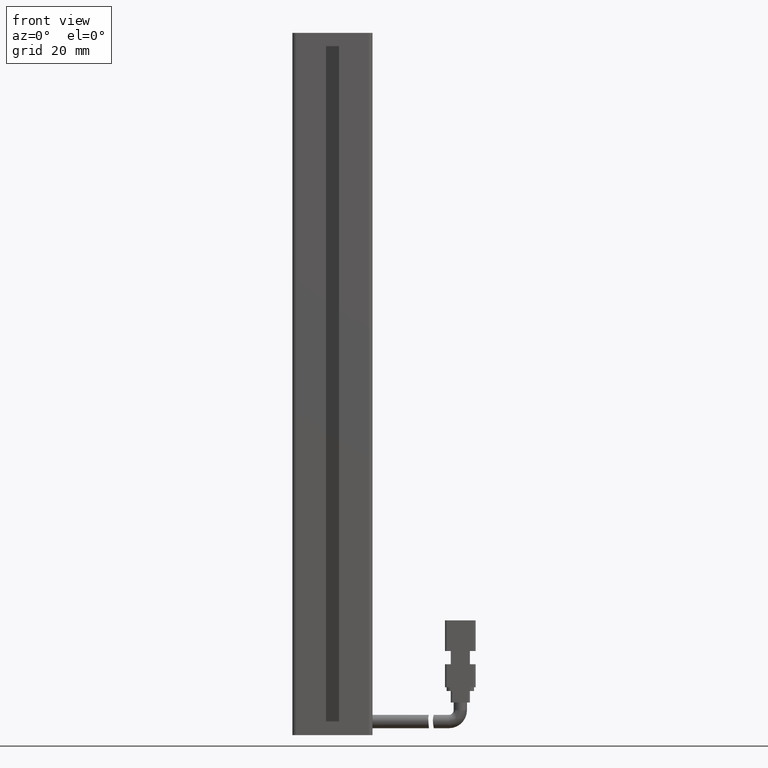
[diagram: clean part render]
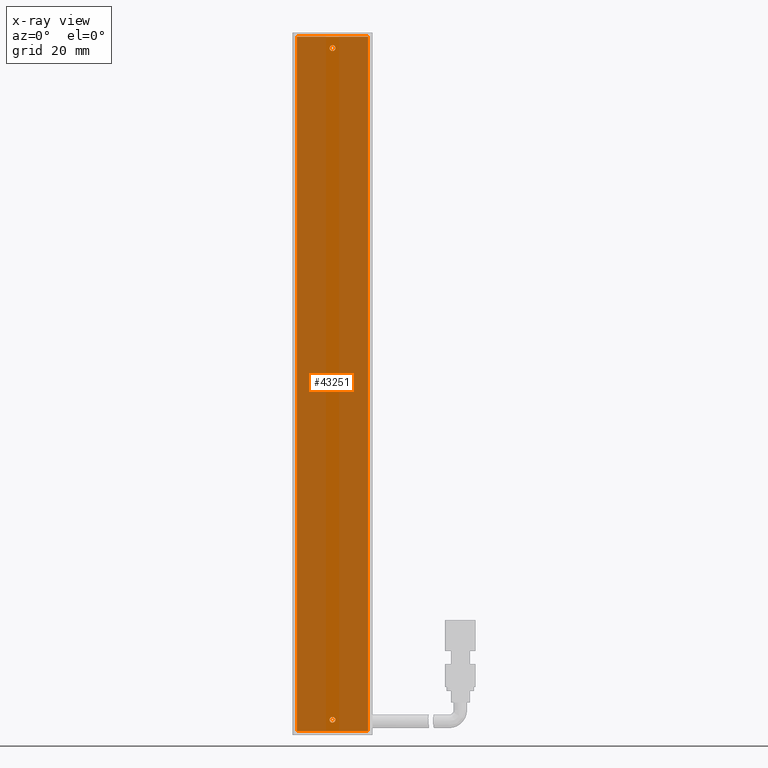
[diagram: x-ray — body ghosted, one internal face saturated and labeled with its STEP entity id]
A machine part, front view, then the same camera in x-ray: the body is ghosted and one INTERNAL B-rep face — a face not visible from any outside direction — is saturated and labeled: STEP entity #43251.
In plain terms, the highlighted planar face has unit normal (-0, 1, 0).
Its self-contained STEP definition (entity closure, byte-faithful):
#704 = VERTEX_POINT ( 'NONE', #17069 ) ;
#1694 = VERTEX_POINT ( 'NONE', #35251 ) ;
#1954 = FACE_BOUND ( 'NONE', #44850, .T. ) ;
#2106 = EDGE_CURVE ( 'NONE', #38720, #4410, #44615, .T. ) ;
#2410 = EDGE_LOOP ( 'NONE', ( #26438, #21220 ) ) ;
#2729 = DIRECTION ( 'NONE',  ( 1.000000000000000000, 0.0000000000000000000, -1.548860246407863500E-017 ) ) ;
#3861 = CIRCLE ( 'NONE', #25537, 0.7500000000000006700 ) ;
#4410 = VERTEX_POINT ( 'NONE', #39815 ) ;
#4697 = CARTESIAN_POINT ( 'NONE',  ( 40.92537974683540400, 32.09073232304837100, -203.0000000000000000 ) ) ;
#4927 = CIRCLE ( 'NONE', #15396, 0.7500000000000006700 ) ;
#5407 = DIRECTION ( 'NONE',  ( -1.548860246407863500E-017, -0.0000000000000000000, -1.000000000000000000 ) ) ;
#5948 = VERTEX_POINT ( 'NONE', #35220 ) ;
#7782 = VERTEX_POINT ( 'NONE', #11247 ) ;
#8095 = DIRECTION ( 'NONE',  ( -0.0000000000000000000, -1.000000000000000000, -0.0000000000000000000 ) ) ;
#8599 = CIRCLE ( 'NONE', #32925, 0.7500000000000006700 ) ;
#8708 = EDGE_CURVE ( 'NONE', #1694, #704, #13529, .T. ) ;
#9887 = LINE ( 'NONE', #39564, #16324 ) ;
#10181 = DIRECTION ( 'NONE',  ( -0.0000000000000000000, -1.000000000000000000, -0.0000000000000000000 ) ) ;
#11211 = EDGE_CURVE ( 'NONE', #7782, #38720, #40896, .T. ) ;
#11247 = CARTESIAN_POINT ( 'NONE',  ( 31.57537974683539900, 32.09073232304837100, -206.0000000000000300 ) ) ;
#12079 = DIRECTION ( 'NONE',  ( -0.0000000000000000000, -1.000000000000000000, -0.0000000000000000000 ) ) ;
#13529 = CIRCLE ( 'NONE', #31983, 0.7500000000000006700 ) ;
#14117 = ORIENTED_EDGE ( 'NONE', *, *, #47263, .F. ) ;
#15049 = CARTESIAN_POINT ( 'NONE',  ( 50.27537974683540500, 32.09073232304837100, -206.0000000000000300 ) ) ;
#15396 = AXIS2_PLACEMENT_3D ( 'NONE', #21740, #18285, #25032 ) ;
#15536 = CARTESIAN_POINT ( 'NONE',  ( 31.57537974683542000, 32.09073232304837100, -24.00000000000002100 ) ) ;
#16288 = EDGE_CURVE ( 'NONE', #5948, #46253, #4927, .T. ) ;
#16324 = VECTOR ( 'NONE', #5407, 1000.000000000000000 ) ;
#17069 = CARTESIAN_POINT ( 'NONE',  ( 40.92537974683540400, 32.09073232304837100, -202.2500000000000000 ) ) ;
#17630 = CARTESIAN_POINT ( 'NONE',  ( 50.27537974683542600, 32.09073232304837100, -24.00000000000002100 ) ) ;
#18285 = DIRECTION ( 'NONE',  ( -0.0000000000000000000, -1.000000000000000000, -0.0000000000000000000 ) ) ;
#19044 = EDGE_LOOP ( 'NONE', ( #35835, #14117, #42991, #41344 ) ) ;
#19142 = DIRECTION ( 'NONE',  ( 0.0000000000000000000, 0.0000000000000000000, 1.000000000000000000 ) ) ;
#21220 = ORIENTED_EDGE ( 'NONE', *, *, #8708, .F. ) ;
#21740 = CARTESIAN_POINT ( 'NONE',  ( 40.92537974683541800, 32.09073232304837100, -27.00000000000002500 ) ) ;
#22639 = CARTESIAN_POINT ( 'NONE',  ( 50.27537974683542600, 32.09073232304837100, -24.00000000000002100 ) ) ;
#23086 = FACE_BOUND ( 'NONE', #2410, .T. ) ;
#23224 = CARTESIAN_POINT ( 'NONE',  ( 40.92537974683541800, 32.09073232304837100, -27.00000000000002500 ) ) ;
#24543 = VECTOR ( 'NONE', #47088, 1000.000000000000000 ) ;
#25032 = DIRECTION ( 'NONE',  ( 0.0000000000000000000, 0.0000000000000000000, 1.000000000000000000 ) ) ;
#25537 = AXIS2_PLACEMENT_3D ( 'NONE', #23224, #8095, #45445 ) ;
#26075 = DIRECTION ( 'NONE',  ( -0.0000000000000000000, 1.000000000000000000, 0.0000000000000000000 ) ) ;
#26438 = ORIENTED_EDGE ( 'NONE', *, *, #32331, .F. ) ;
#28221 = VECTOR ( 'NONE', #2729, 1000.000000000000000 ) ;
#29337 = ORIENTED_EDGE ( 'NONE', *, *, #16288, .F. ) ;
#31700 = LINE ( 'NONE', #34088, #33441 ) ;
#31885 = CARTESIAN_POINT ( 'NONE',  ( 31.57537974683540600, 32.09073232304837100, -24.00000000000002100 ) ) ;
#31897 = AXIS2_PLACEMENT_3D ( 'NONE', #22639, #26075, #37299 ) ;
#31983 = AXIS2_PLACEMENT_3D ( 'NONE', #43911, #10181, #47483 ) ;
#32331 = EDGE_CURVE ( 'NONE', #704, #1694, #8599, .T. ) ;
#32925 = AXIS2_PLACEMENT_3D ( 'NONE', #4697, #12079, #19142 ) ;
#33441 = VECTOR ( 'NONE', #38633, 1000.000000000000000 ) ;
#34088 = CARTESIAN_POINT ( 'NONE',  ( 50.27537974683541900, 32.09073232304837100, -206.0000000000000300 ) ) ;
#35220 = CARTESIAN_POINT ( 'NONE',  ( 40.92537974683541800, 32.09073232304837100, -26.25000000000002500 ) ) ;
#35251 = CARTESIAN_POINT ( 'NONE',  ( 40.92537974683540400, 32.09073232304837100, -203.7500000000000300 ) ) ;
#35835 = ORIENTED_EDGE ( 'NONE', *, *, #11211, .F. ) ;
#37141 = PLANE ( 'NONE',  #31897 ) ;
#37147 = EDGE_CURVE ( 'NONE', #46253, #5948, #3861, .T. ) ;
#37299 = DIRECTION ( 'NONE',  ( 1.548860246407863500E-017, 0.0000000000000000000, 1.000000000000000000 ) ) ;
#37526 = ORIENTED_EDGE ( 'NONE', *, *, #37147, .F. ) ;
#38633 = DIRECTION ( 'NONE',  ( -1.000000000000000000, -0.0000000000000000000, 1.548860246407863500E-017 ) ) ;
#38688 = VERTEX_POINT ( 'NONE', #15049 ) ;
#38720 = VERTEX_POINT ( 'NONE', #15536 ) ;
#38794 = FACE_OUTER_BOUND ( 'NONE', #19044, .T. ) ;
#39264 = EDGE_CURVE ( 'NONE', #4410, #38688, #9887, .T. ) ;
#39564 = CARTESIAN_POINT ( 'NONE',  ( 50.27537974683542600, 32.09073232304837100, -24.00000000000002100 ) ) ;
#39815 = CARTESIAN_POINT ( 'NONE',  ( 50.27537974683542600, 32.09073232304837100, -24.00000000000002100 ) ) ;
#40896 = LINE ( 'NONE', #31885, #24543 ) ;
#41344 = ORIENTED_EDGE ( 'NONE', *, *, #2106, .F. ) ;
#41546 = CARTESIAN_POINT ( 'NONE',  ( 40.92537974683541800, 32.09073232304837100, -27.75000000000002500 ) ) ;
#42991 = ORIENTED_EDGE ( 'NONE', *, *, #39264, .F. ) ;
#43251 = ADVANCED_FACE ( 'NONE', ( #38794, #1954, #23086 ), #37141, .F. ) ;
#43911 = CARTESIAN_POINT ( 'NONE',  ( 40.92537974683540400, 32.09073232304837100, -203.0000000000000000 ) ) ;
#44615 = LINE ( 'NONE', #17630, #28221 ) ;
#44850 = EDGE_LOOP ( 'NONE', ( #29337, #37526 ) ) ;
#45445 = DIRECTION ( 'NONE',  ( 0.0000000000000000000, 0.0000000000000000000, 1.000000000000000000 ) ) ;
#46253 = VERTEX_POINT ( 'NONE', #41546 ) ;
#47088 = DIRECTION ( 'NONE',  ( 1.548860246407863500E-017, 0.0000000000000000000, 1.000000000000000000 ) ) ;
#47263 = EDGE_CURVE ( 'NONE', #38688, #7782, #31700, .T. ) ;
#47483 = DIRECTION ( 'NONE',  ( 0.0000000000000000000, 0.0000000000000000000, 1.000000000000000000 ) ) ;